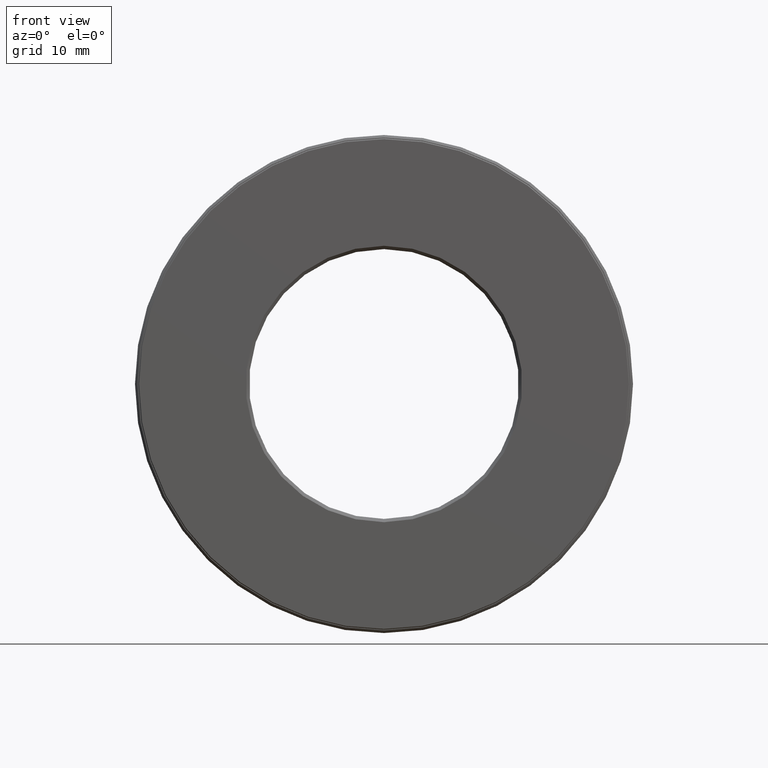
[diagram: clean part render]
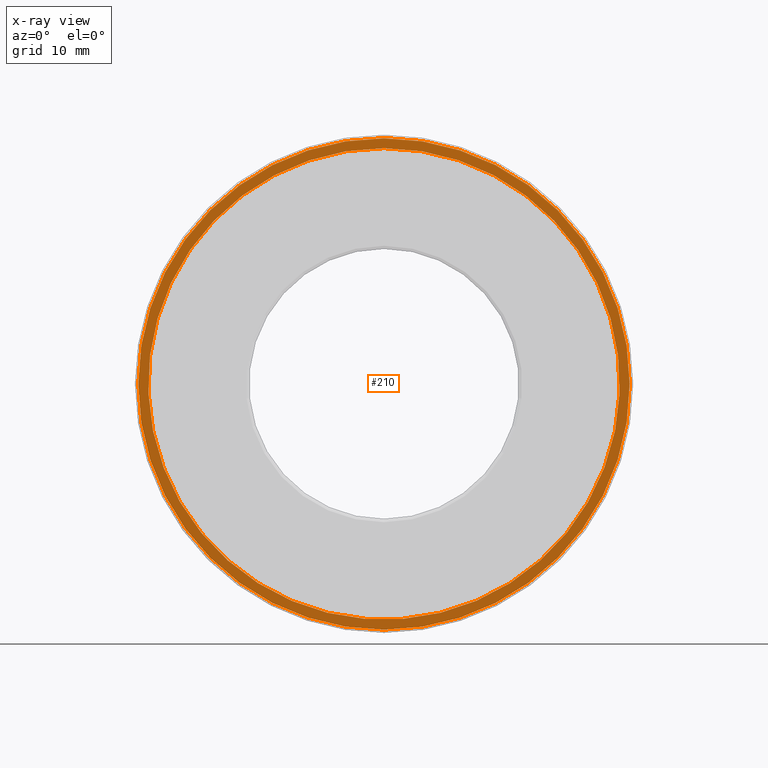
[diagram: x-ray — body ghosted, one internal face saturated and labeled with its STEP entity id]
A machine part, front view, then the same camera in x-ray: the body is ghosted and one INTERNAL B-rep face — a face not visible from any outside direction — is saturated and labeled: STEP entity #210.
In plain terms, the highlighted planar face has unit normal (-0, 1, 0).
Its self-contained STEP definition (entity closure, byte-faithful):
#43 = DIRECTION ( 'NONE',  ( 0.0000000000000000000, 0.0000000000000000000, 1.000000000000000000 ) ) ;
#71 = EDGE_LOOP ( 'NONE', ( #242 ) ) ;
#102 = CARTESIAN_POINT ( 'NONE',  ( 0.0000000000000000000, 1.152499999999999900, 0.0000000000000000000 ) ) ;
#134 = DIRECTION ( 'NONE',  ( -0.0000000000000000000, 1.000000000000000000, -0.0000000000000000000 ) ) ;
#136 = AXIS2_PLACEMENT_3D ( 'NONE', #178, #134, #43 ) ;
#164 = AXIS2_PLACEMENT_3D ( 'NONE', #413, #468, #507 ) ;
#175 = EDGE_CURVE ( 'NONE', #474, #474, #590, .T. ) ;
#178 = CARTESIAN_POINT ( 'NONE',  ( 0.0000000000000000000, 1.152499999999999900, 0.0000000000000000000 ) ) ;
#210 = ADVANCED_FACE ( 'NONE', ( #388, #361 ), #598, .F. ) ;
#221 = ORIENTED_EDGE ( 'NONE', *, *, #175, .T. ) ;
#239 = VERTEX_POINT ( 'NONE', #450 ) ;
#242 = ORIENTED_EDGE ( 'NONE', *, *, #390, .F. ) ;
#327 = DIRECTION ( 'NONE',  ( -0.0000000000000000000, 1.000000000000000000, -0.0000000000000000000 ) ) ;
#345 = AXIS2_PLACEMENT_3D ( 'NONE', #102, #327, #477 ) ;
#361 = FACE_BOUND ( 'NONE', #497, .T. ) ;
#388 = FACE_OUTER_BOUND ( 'NONE', #71, .T. ) ;
#390 = EDGE_CURVE ( 'NONE', #239, #239, #434, .T. ) ;
#413 = CARTESIAN_POINT ( 'NONE',  ( 0.0000000000000000000, 1.152499999999999900, 0.0000000000000000000 ) ) ;
#434 = CIRCLE ( 'NONE', #345, 1.480000000000000000 ) ;
#450 = CARTESIAN_POINT ( 'NONE',  ( 0.0000000000000000000, 1.152499999999999900, 1.480000000000000000 ) ) ;
#468 = DIRECTION ( 'NONE',  ( -0.0000000000000000000, 1.000000000000000000, 0.0000000000000000000 ) ) ;
#474 = VERTEX_POINT ( 'NONE', #533 ) ;
#477 = DIRECTION ( 'NONE',  ( 0.0000000000000000000, 0.0000000000000000000, 1.000000000000000000 ) ) ;
#497 = EDGE_LOOP ( 'NONE', ( #221 ) ) ;
#507 = DIRECTION ( 'NONE',  ( 0.0000000000000000000, 0.0000000000000000000, 1.000000000000000000 ) ) ;
#533 = CARTESIAN_POINT ( 'NONE',  ( 0.0000000000000000000, 1.152499999999999900, 1.420000000000000200 ) ) ;
#590 = CIRCLE ( 'NONE', #136, 1.420000000000000200 ) ;
#598 = PLANE ( 'NONE',  #164 ) ;